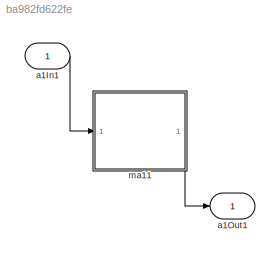
MODEL slx_ba982fd622fe
KIND model
CONFIG AbsTol = auto
CONFIG EnableMultiTasking = off
CONFIG FixedStep = auto
CONFIG MaxStep = auto
CONFIG MinStep = auto
CONFIG RelTol = 1e-3
CONFIG SampleTimeConstraint = Unconstrained
CONFIG Solver = VariableStepAuto
CONFIG SolverName = VariableStepAuto
CONFIG StartTime = 0.0
CONFIG StopTime = 10.0
BLOCK [Inport] a1In1
  IconDisplay = Port number
  OutDataTypeStr = double
BLOCK [Outport] a1Out1
  IconDisplay = Port number
  OutDataTypeStr = double
BLOCK [ModelReference] ma11
  ModelNameDialog = Mission_A11
  ModelReferenceVersion = 1.1
  Ports = [1, 1]
LINE a1In1:1 -> ma11:1
LINE ma11:1 -> a1Out1:1
